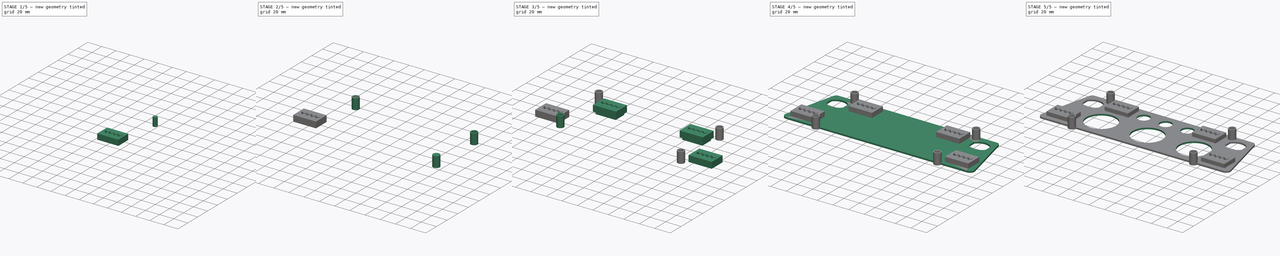
[diagram: build sequence overview — one tinted view per stage of 5, left to right]
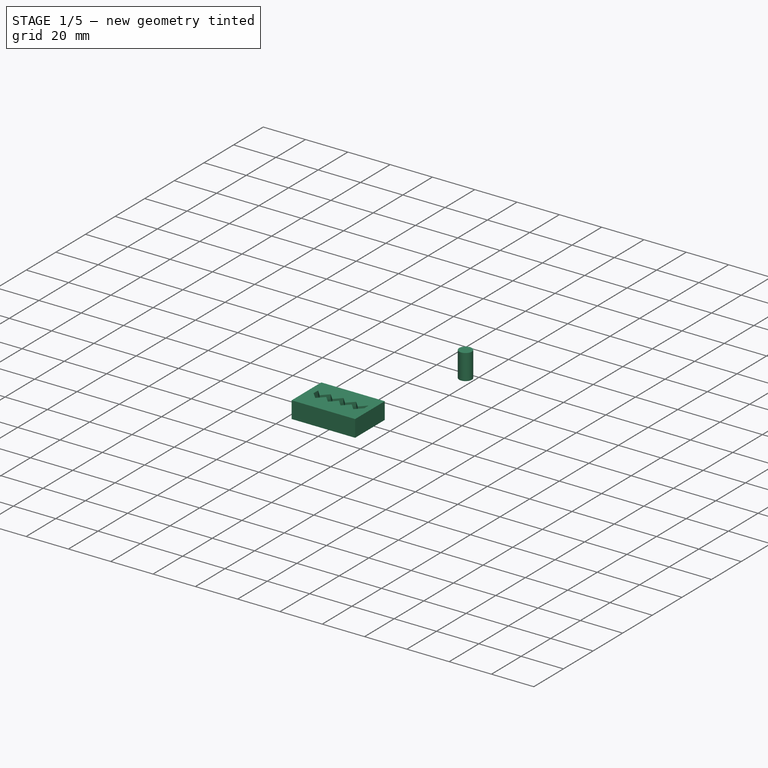
[diagram: stage 1 of 5 — iso view after this stage's code; geometry added in this stage tinted green]
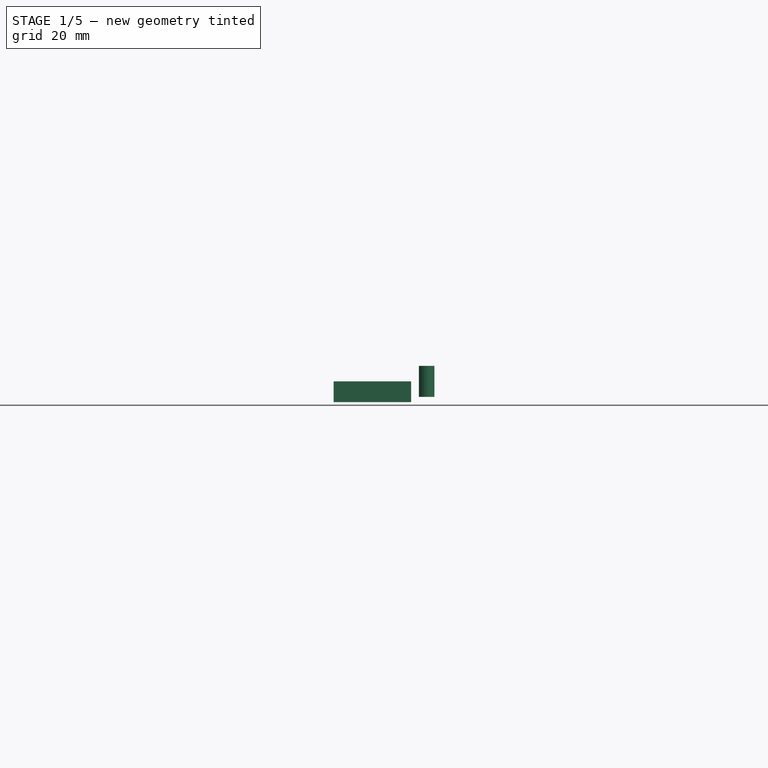
[diagram: stage 1 of 5 — front view after this stage's code; geometry added in this stage tinted green]
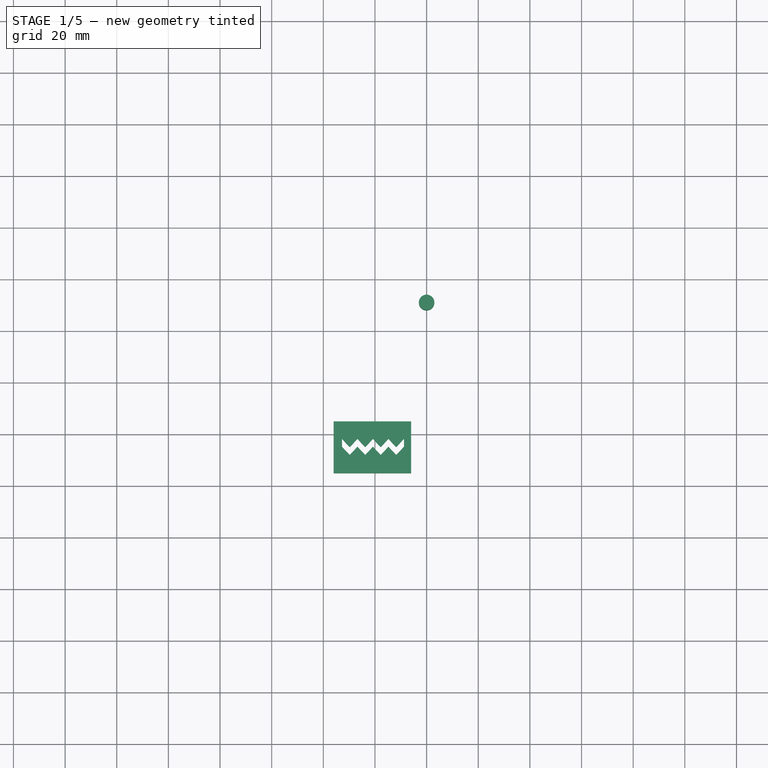
[diagram: stage 1 of 5 — top view after this stage's code; geometry added in this stage tinted green]
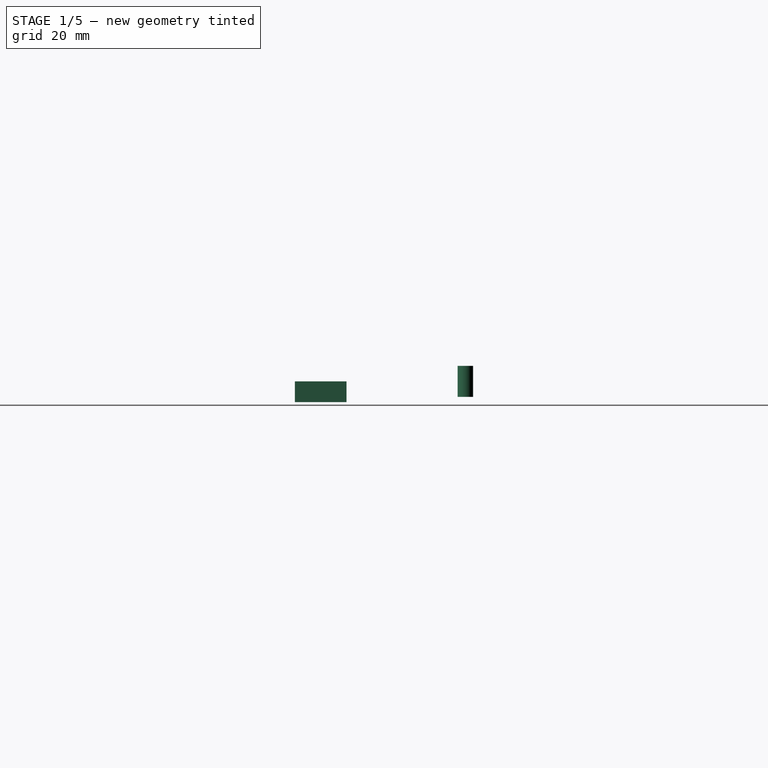
[diagram: stage 1 of 5 — right view after this stage's code; geometry added in this stage tinted green]
FCSTD DOCUMENT  (FreeCAD 0.16R5446 (Git))
Label: project_n
License: All rights reserved
LicenseURL: http://en.wikipedia.org/wiki/All_rights_reserved
objects: Part::Cylinder×8, Sketcher::SketchObject×7, Part::Box×7, Part::Cut×6, PartDesign::Pocket×5, Part::MultiFuse×5, Part::Feature×3, PartDesign::LinearPattern×2, PartDesign::Fillet×2, PartDesign::Pad×1
note: 52 computed .brp shape members not serialized (recipe doc carries the construction recipe); baked Part::Feature solids carry a one-line shape summary decoded from their .brp

FEATURE [Part::Cylinder] Cylinder007
  Angle = 360
  Height = 12
  Placement = pos=(0,71,2) rot=(0,0,1;0rad)
  Radius = 3
FEATURE [Part::Box] Box  label="Cube"
  Height = 8
  Length = 30
  Width = 20
FEATURE [Part::Box] Box001  label="Cube001"
  Height = 8
  Length = 26
  Placement = pos=(2,2,0) rot=(0,0,1;0rad)
  Width = 16
FEATURE [Part::Cut] Cut004
  Base = -> Box
  Tool = -> Box001
FEATURE [Part::Box] Box002  label="Cube002"
  Height = 2
  Length = 30
  Placement = pos=(0,0,6) rot=(0,0,1;0rad)
  Width = 20
FEATURE [Sketcher::SketchObject] Sketch004
  Placement = pos=(0,0,8) rot=(0,0,1;0rad)
  Support = -> Box002 [Face6]
  sketch-geometry (19):
    g0: LineSegment StartX=3.2265 StartY=13.2081 StartZ=0 EndX=6.2265 EndY=10 EndZ=0
    g1: LineSegment StartX=6.2265 StartY=10 StartZ=0 EndX=9.2265 EndY=13.2081 EndZ=0
    g2: LineSegment StartX=9.2265 StartY=13.2081 StartZ=0 EndX=12.2265 EndY=10 EndZ=0
    g3: LineSegment StartX=12.2265 StartY=10 StartZ=0 EndX=15.2265 EndY=13.2081 EndZ=0
    g4: LineSegment StartX=15.2265 StartY=13.2081 StartZ=0 EndX=18.2265 EndY=10 EndZ=0
    g5: LineSegment StartX=18.2265 StartY=10 StartZ=0 EndX=21.2265 EndY=13.2081 EndZ=0
    g6: LineSegment StartX=21.2265 StartY=13.2081 StartZ=0 EndX=24.2265 EndY=10 EndZ=0
    g7: LineSegment StartX=24.2265 StartY=10 StartZ=0 EndX=27.2265 EndY=13.2081 EndZ=0
    g8: LineSegment StartX=3.2265 StartY=13.2081 StartZ=0 EndX=3.2265 EndY=10.2081 EndZ=0
    g9: LineSegment StartX=3.2265 StartY=10.2081 StartZ=0 EndX=6.2265 EndY=7 EndZ=0
    g10: LineSegment StartX=6.2265 StartY=7 StartZ=0 EndX=9.2265 EndY=10.2081 EndZ=0
    g11: LineSegment StartX=9.2265 StartY=10.2081 StartZ=0 EndX=12.2265 EndY=7 EndZ=0
    g12: LineSegment StartX=12.2265 StartY=7 StartZ=0 EndX=15.2265 EndY=10.2081 EndZ=0
    g13: LineSegment StartX=15.2265 StartY=10.2081 StartZ=0 EndX=18.2265 EndY=7 EndZ=0
    g14: LineSegment StartX=18.2265 StartY=7 StartZ=0 EndX=21.2265 EndY=10.2081 EndZ=0
    g15: LineSegment StartX=21.2265 StartY=10.2081 StartZ=0 EndX=24.2265 EndY=7 EndZ=0
    g16: LineSegment StartX=24.2265 StartY=7 StartZ=0 EndX=27.2265 EndY=10.2081 EndZ=0
    g17: LineSegment StartX=27.2265 StartY=10.2081 StartZ=0 EndX=27.2265 EndY=13.2081 EndZ=0
    g18: LineSegment StartX=2.64581 StartY=15.2081 StartZ=0 EndX=29.6458 EndY=15.2081 EndZ=0
  constraints (50):
    c: Coincident(g0,g1)
    c: Coincident(g1,g2)
    c: Coincident(g2,g3)
    c: Coincident(g3,g4)
    c: Coincident(g4,g5)
    c: Coincident(g5,g6)
    c: Coincident(g6,g7)
    c: Coincident(g0,g8)
    c: Vertical(g8)
    c: Coincident(g8,g9)
    c: Coincident(g9,g10)
    c: Coincident(g10,g11)
    c: Coincident(g11,g12)
    c: Coincident(g12,g13)
    c: Coincident(g13,g14)
    c: Coincident(g14,g15)
    c: Coincident(g15,g16)
    c: Coincident(g16,g17)
    c: Coincident(g17,g7)
    c: DistanceY(g0,g9) = -3
    c: DistanceY(g8,g0) = 3
    c: DistanceY(g1,g10) = -3
    c: DistanceY(g11,g2) = 3
    c: DistanceY(g12,g3) = 3
    c: DistanceY(g4,g13) = -3
    c: DistanceY(g5,g14) = -3
    c: DistanceY(g15,g6) = 3
    c: DistanceY(g16,g7) = 3
    c: Horizontal(g18)
    c: DistanceY(g18,g0) = -2
    c: DistanceY(g1,g18) = 2
    c: DistanceY(g3,g18) = 2
    c: DistanceY(g5,g18) = 2
    c: DistanceY(g7,g18) = 2
    c: DistanceX(g0,g1) = 6
    c: DistanceX(g1,g3) = 6
    c: DistanceX(g3,g5) = 6
    c: DistanceX(g5,g7) = 6
    c: Vertical(g17)
    c: DistanceX(g9,g11) = 6
    c: DistanceX(g11,g13) = 6
    c: DistanceX(g13,g15) = 6
    c: DistanceX(g9,g8) = -3
    c: DistanceX(g8,g0) = 3
    c: DistanceX(g10,g0) = -3
    c: DistanceX(g10,g12) = 6
    c: DistanceX(g12,g14) = 6
    c: DistanceX(g2,g0) = -6
    c: DistanceX(g4,g2) = -6
    c: DistanceX(g4,g6) = 6
FEATURE [PartDesign::Pocket] Pocket002
  Length = 5
  Placement = pos=(0,0,6) rot=(0,0,1;0rad)
  Sketch = -> Sketch004
  Type = 0
FEATURE [Part::MultiFuse] Fusion001
  Placement = pos=(-36,5,0) rot=(0,0,1;0rad)
  Shapes = -> [Cut004,Pocket002]
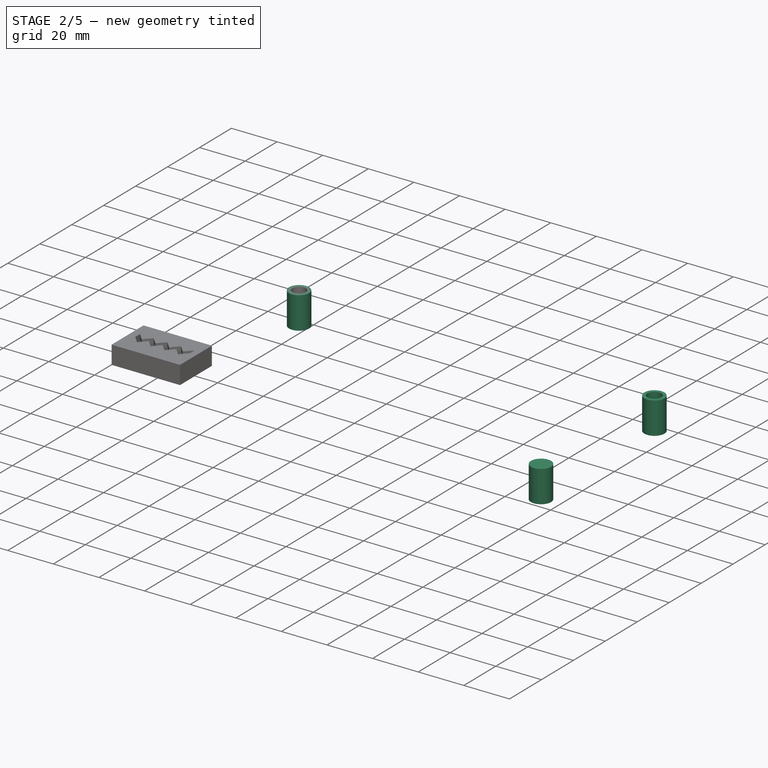
[diagram: stage 2 of 5 — iso view after this stage's code; geometry added in this stage tinted green]
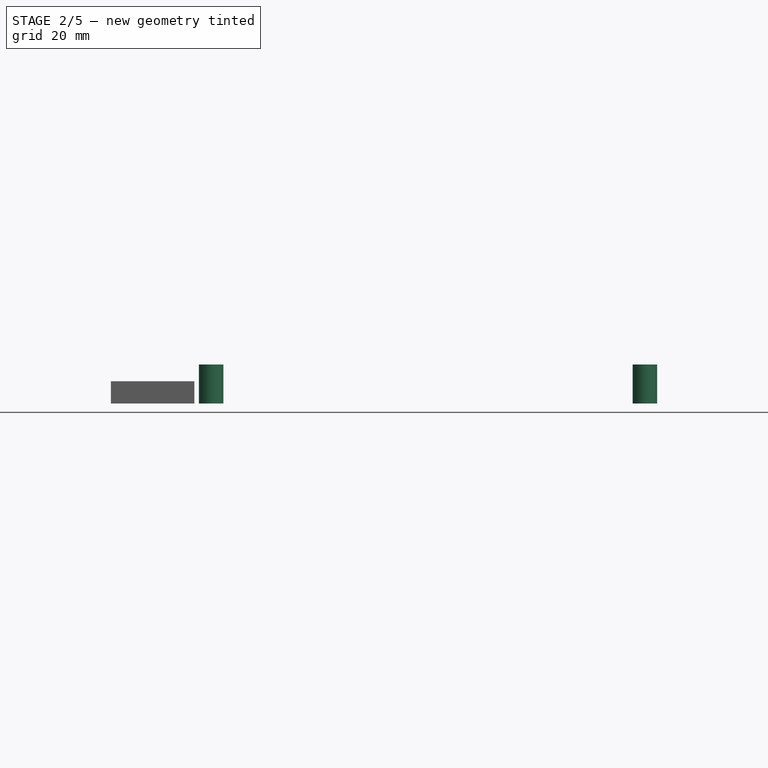
[diagram: stage 2 of 5 — front view after this stage's code; geometry added in this stage tinted green]
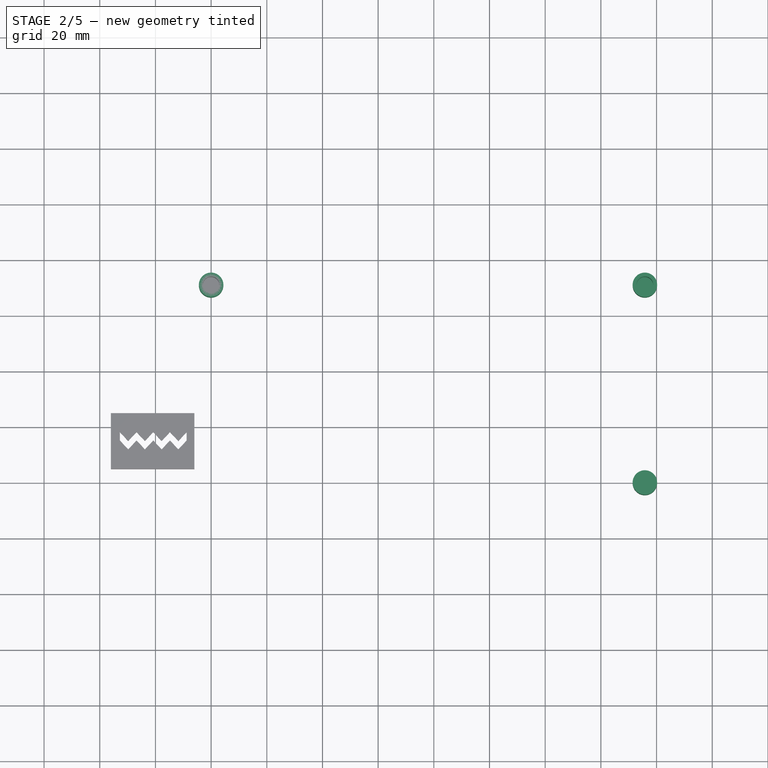
[diagram: stage 2 of 5 — top view after this stage's code; geometry added in this stage tinted green]
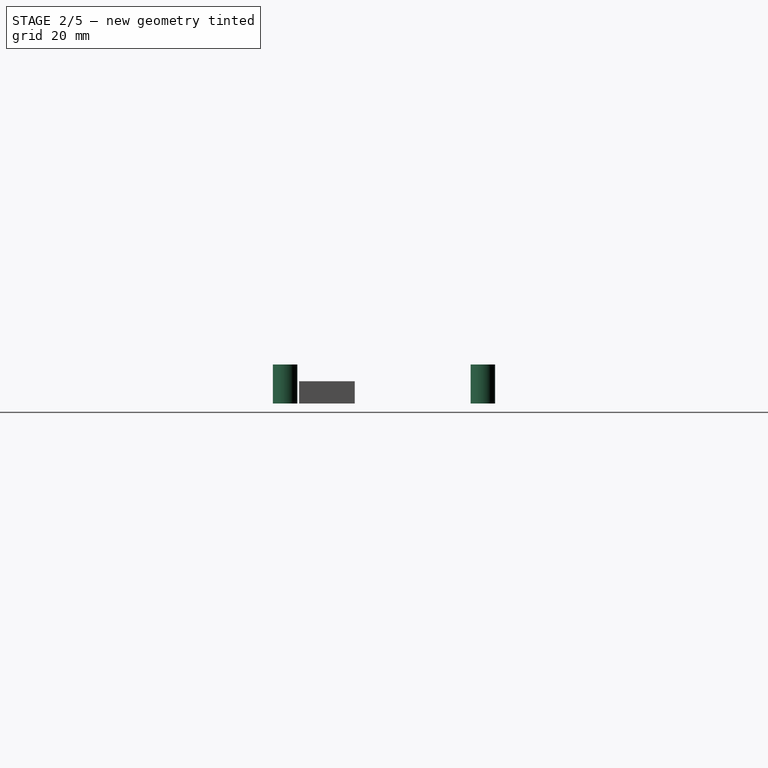
[diagram: stage 2 of 5 — right view after this stage's code; geometry added in this stage tinted green]
FEATURE [Part::Cylinder] Cylinder001
  Angle = 360
  Height = 14
  Placement = pos=(155.8,0,0) rot=(0,0,1;0rad)
  Radius = 4.4
FEATURE [Part::Cylinder] Cylinder002
  Angle = 360
  Height = 14
  Placement = pos=(155.8,71,0) rot=(0,0,1;0rad)
  Radius = 4.4
FEATURE [Part::Cylinder] Cylinder003
  Angle = 360
  Height = 14
  Placement = pos=(0,71,0) rot=(0,0,1;0rad)
  Radius = 4.4
FEATURE [Part::Cylinder] Cylinder005
  Angle = 360
  Height = 12
  Placement = pos=(155.8,0,2) rot=(0,0,1;0rad)
  Radius = 3
FEATURE [Part::Cylinder] Cylinder006
  Angle = 360
  Height = 12
  Placement = pos=(155.8,71,2) rot=(0,0,1;0rad)
  Radius = 3
FEATURE [Part::Cut] Cut002
  Base = -> Cylinder002
  Tool = -> Cylinder006
FEATURE [Part::Cut] Cut003
  Base = -> Cylinder003
  Tool = -> Cylinder007
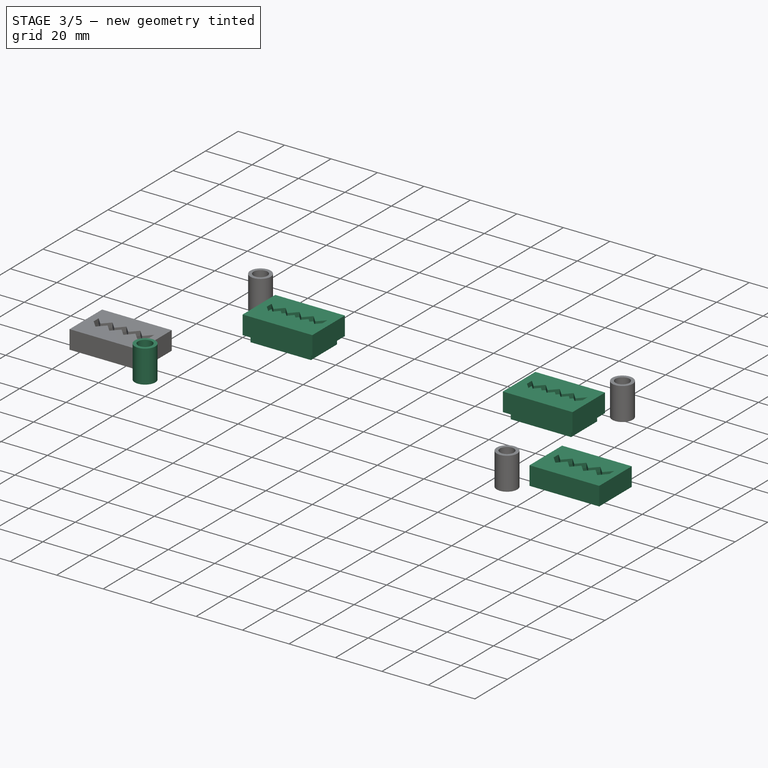
[diagram: stage 3 of 5 — iso view after this stage's code; geometry added in this stage tinted green]
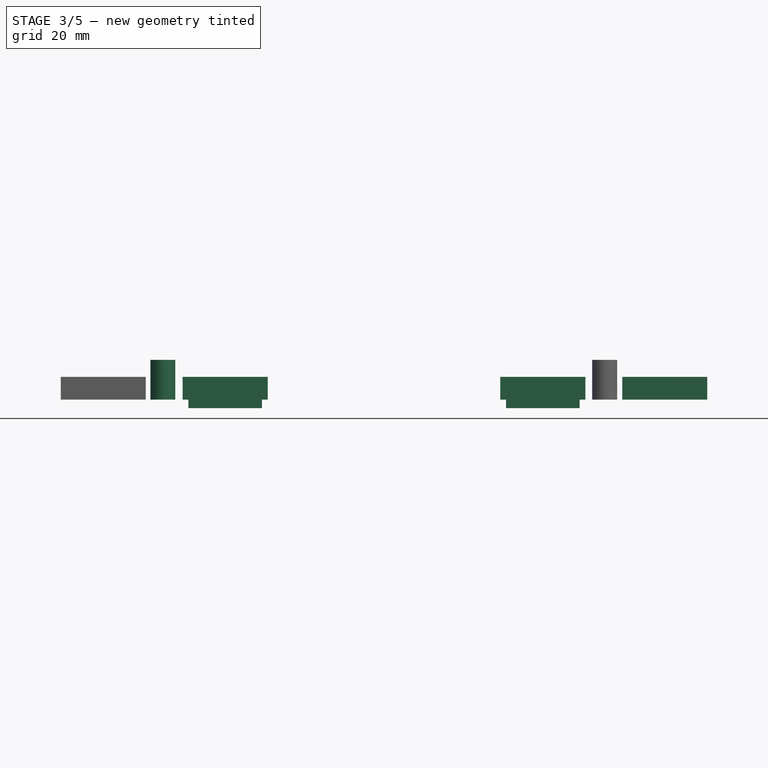
[diagram: stage 3 of 5 — front view after this stage's code; geometry added in this stage tinted green]
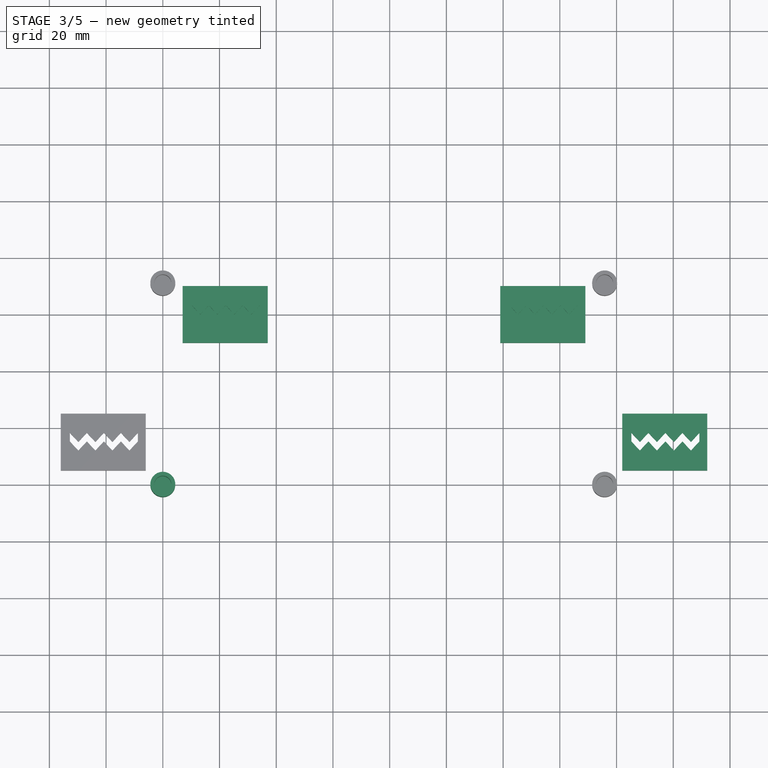
[diagram: stage 3 of 5 — top view after this stage's code; geometry added in this stage tinted green]
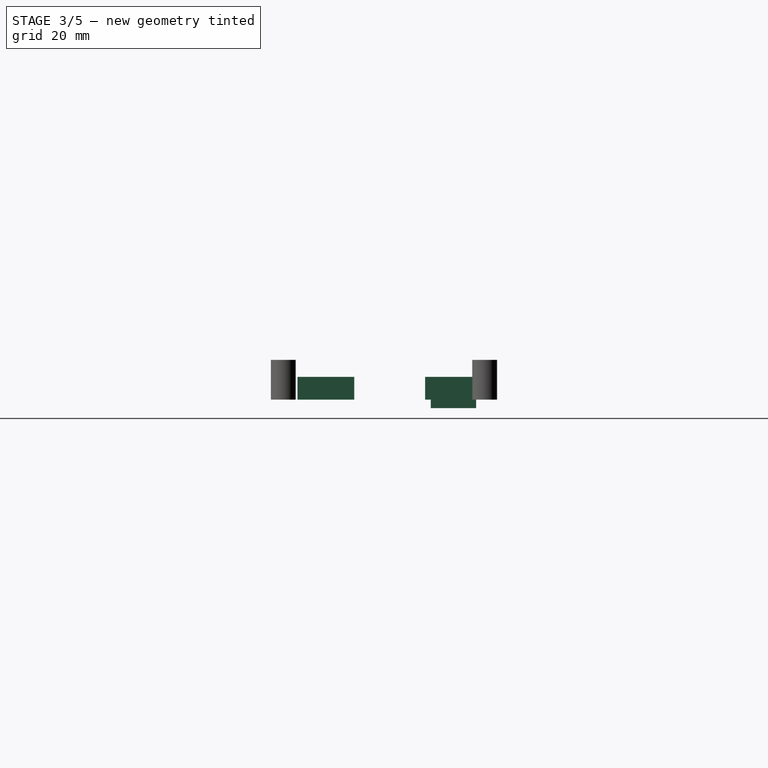
[diagram: stage 3 of 5 — right view after this stage's code; geometry added in this stage tinted green]
FEATURE [Part::Cylinder] Cylinder
  Angle = 360
  Height = 14
  Radius = 4.4
FEATURE [Part::Cylinder] Cylinder004
  Angle = 360
  Height = 12
  Placement = pos=(0,0,2) rot=(0,0,1;0rad)
  Radius = 3
FEATURE [Part::Cut] Cut
  Base = -> Cylinder
  Tool = -> Cylinder004
FEATURE [Part::Cut] Cut001
  Base = -> Cylinder001
  Tool = -> Cylinder005
FEATURE [Part::MultiFuse] Fusion
  Shapes = -> [Cut,Cut001,Cut002,Cut003]
FEATURE [Part::Box] Box005  label="Cube005"
  Height = 8
  Length = 26
  Placement = pos=(121,52,-3) rot=(0,0,1;0rad)
  Width = 16
FEATURE [Part::Box] Box006  label="Cube006"
  Height = 8
  Length = 26
  Placement = pos=(9,52,-3) rot=(0,0,1;0rad)
  Width = 16
FEATURE [Part::MultiFuse] Fusion001005
  Shapes = -> [Fusion,Fusion001,Fusion001001,Fusion001002,Fusion001003]
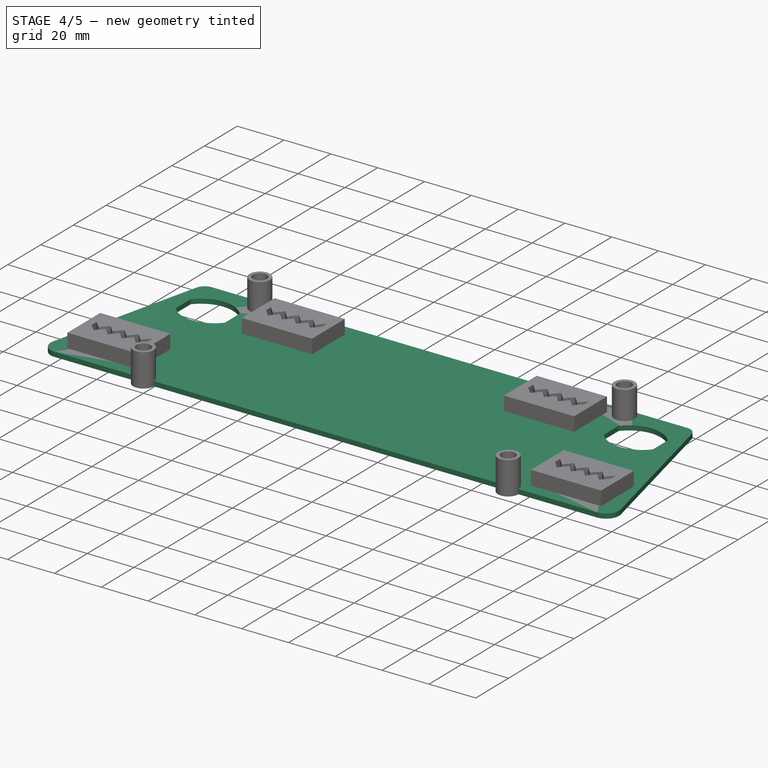
[diagram: stage 4 of 5 — iso view after this stage's code; geometry added in this stage tinted green]
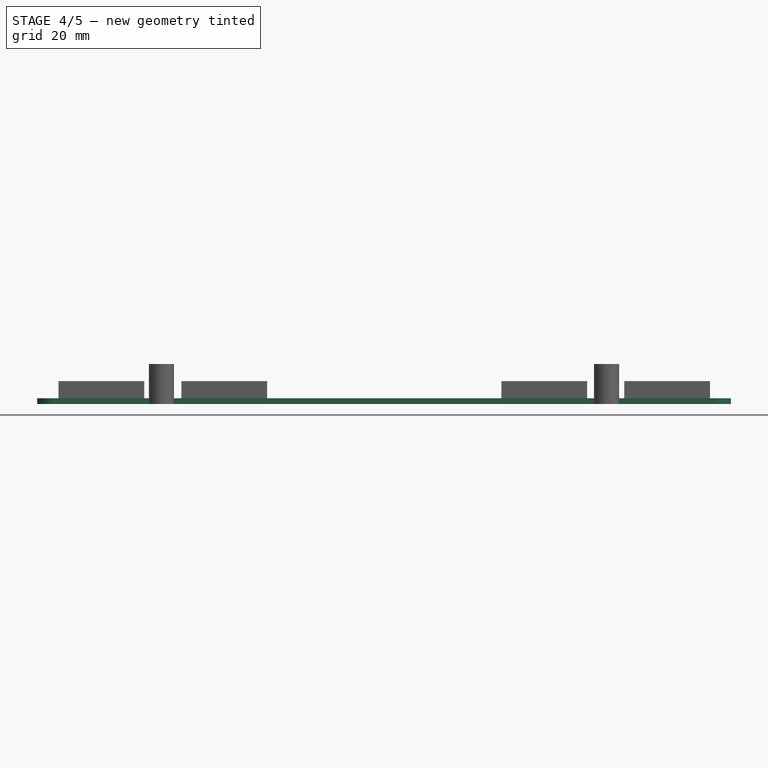
[diagram: stage 4 of 5 — front view after this stage's code; geometry added in this stage tinted green]
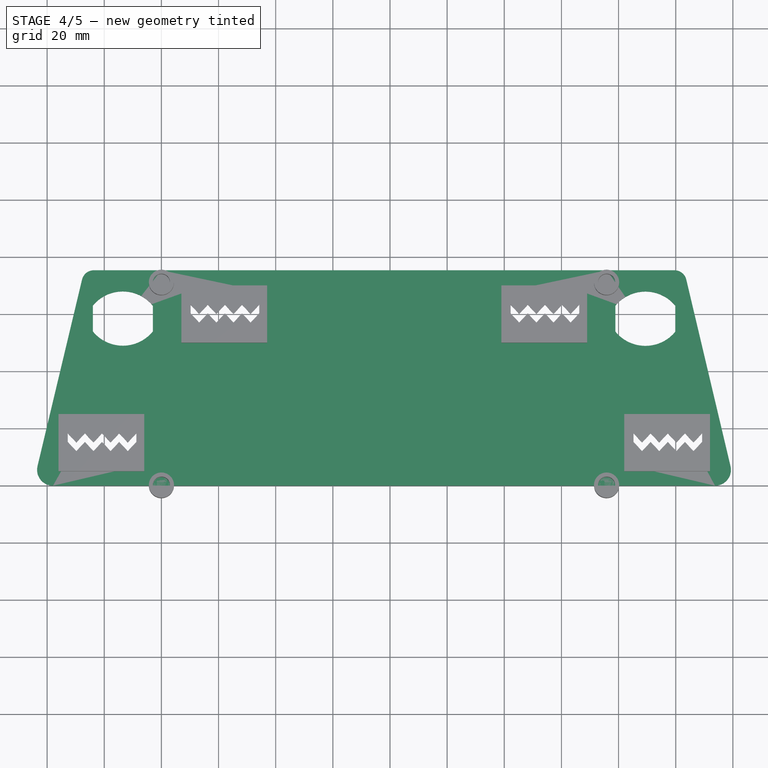
[diagram: stage 4 of 5 — top view after this stage's code; geometry added in this stage tinted green]
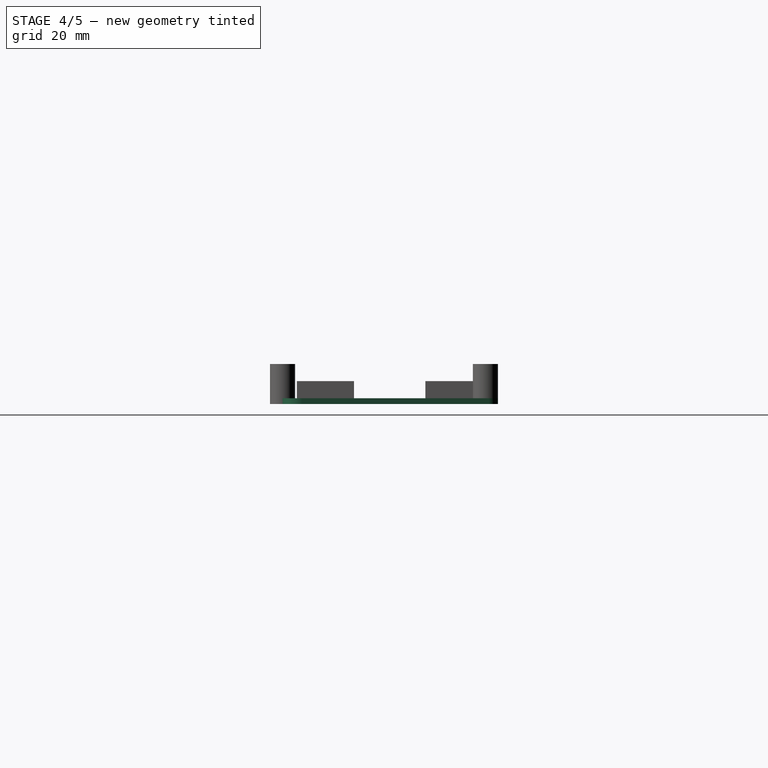
[diagram: stage 4 of 5 — right view after this stage's code; geometry added in this stage tinted green]
FEATURE [Sketcher::SketchObject] Sketch
  Placement = pos=(0,0,0) rot=(1,0,0;3.14159rad)
  sketch-geometry (12):
    g0: LineSegment StartX=0 StartY=0 StartZ=0 EndX=-37.9357 EndY=0 EndZ=0
    g1: LineSegment StartX=0 StartY=-75.4 StartZ=0 EndX=-23.6542 EndY=-75.4 EndZ=0
    g2: LineSegment StartX=-43.3597 StartY=-6.8712 StartZ=0 EndX=-27.7769 EndY=-72.1456 EndZ=0
    g3: LineSegment StartX=155.796 StartY=0 StartZ=0 EndX=193.736 EndY=0 EndZ=0
    g4: LineSegment StartX=199.168 StartY=-6.8694 StartZ=0 EndX=183.702 EndY=-72.1409 EndZ=0
    g5: LineSegment StartX=179.58 StartY=-75.4 StartZ=0 EndX=155.929 EndY=-75.4 EndZ=0
    g6: LineSegment StartX=0 StartY=-75.4 StartZ=0 EndX=155.929 EndY=-75.4 EndZ=0
    g7: LineSegment StartX=155.796 StartY=0 StartZ=0 EndX=0 EndY=0 EndZ=0
    g8: ArcOfCircle CenterX=-37.9357 CenterY=-5.57636 CenterZ=0 NormalX=0 NormalY=0 NormalZ=1 Radius=5.57636 StartAngle=1.5708 EndAngle=3.37593
    g9: ArcOfCircle CenterX=-23.6542 CenterY=-71.1614 CenterZ=0 NormalX=0 NormalY=0 NormalZ=1 Radius=4.23857 StartAngle=3.37593 EndAngle=4.71239
    g10: ArcOfCircle CenterX=179.58 CenterY=-71.1642 CenterZ=0 NormalX=0 NormalY=0 NormalZ=1 Radius=4.23577 StartAngle=4.71239 EndAngle=6.05052
    g11: ArcOfCircle CenterX=193.736 CenterY=-5.58227 CenterZ=0 NormalX=0 NormalY=0 NormalZ=1 Radius=5.58227 StartAngle=6.05052 EndAngle=7.85398
  constraints (20):
    c: Coincident(g-1,g0)
    c: Horizontal(g1)
    c: DistanceY(g-1,g1) = -75.4
    c: PointOnObject(g1,g-2)
    c: Horizontal(g3)
    c: Horizontal(g5)
    c: DistanceY(g5,g3) = 75.4
    c: Coincident(g6,g1)
    c: Coincident(g6,g5)
    c: Horizontal(g6)
    c: Coincident(g7,g3)
    c: Coincident(g7,g-1)
    c: Tangent(g0,g8) = -1.5708
    c: Tangent(g2,g8) = -1.5708
    c: Tangent(g1,g9) = 1.5708
    c: Tangent(g2,g9) = -1.5708
    c: Tangent(g4,g10) = 1.5708
    c: Tangent(g5,g10) = 1.5708
    c: Tangent(g3,g11) = 1.5708
    c: Tangent(g4,g11) = 1.5708
FEATURE [PartDesign::Pad] Pad
  Length = 2
  Length2 = 100
  Placement = pos=(0,0,0) rot=(1,0,0;3.14159rad)
  Reversed = true
  Sketch = -> Sketch
  Type = 0
FEATURE [Sketcher::SketchObject] Sketch001
  Placement = pos=(0,0,0) rot=(1,0,0;3.14159rad)
  Support = -> Pad [Face13]
FEATURE [Sketcher::SketchObject] Sketch002
  Placement = pos=(0,0,0) rot=(1,0,0;3.14159rad)
  Support = -> Pad [Face13]
  sketch-geometry (4):
    g0: ArcOfCircle CenterX=-13.5019 CenterY=-62.5019 CenterZ=0 NormalX=0 NormalY=0 NormalZ=1 Radius=13.5061 StartAngle=0.680901 EndAngle=2.46072
    g1: ArcOfCircle CenterX=-13.5196 CenterY=-54.4175 CenterZ=0 NormalX=0 NormalY=0 NormalZ=1 Radius=13.5666 StartAngle=3.83001 EndAngle=5.59886
    g2: LineSegment StartX=-23.9965 StartY=-54.0002 StartZ=0 EndX=-23.9965 EndY=-63.0367 EndZ=0
    g3: LineSegment StartX=-3.00764 StartY=-53.9999 StartZ=0 EndX=-3.00764 EndY=-62.9937 EndZ=0
  constraints (6):
    c: Vertical(g2)
    c: Vertical(g3)
    c: Coincident(g0,g3)
    c: Coincident(g1,g3)
    c: Coincident(g0,g2)
    c: Coincident(g1,g2)
FEATURE [PartDesign::Pocket] Pocket
  Length = 5
  Placement = pos=(0,0,0) rot=(1,0,0;3.14159rad)
  Sketch = -> Sketch002
  Type = 0
FEATURE [Sketcher::SketchObject] Sketch003
  Placement = pos=(0,0,0) rot=(1,0,0;3.14159rad)
  Support = -> Pocket [Face4]
  sketch-geometry (4):
    g0: ArcOfCircle CenterX=169.393 CenterY=-62.4863 CenterZ=0 NormalX=0 NormalY=0 NormalZ=1 Radius=13.5417 StartAngle=0.683489 EndAngle=2.45813
    g1: ArcOfCircle CenterX=169.376 CenterY=-54.4038 CenterZ=0 NormalX=0 NormalY=0 NormalZ=1 Radius=13.5402 StartAngle=3.82699 EndAngle=5.6019
    g2: LineSegment StartX=158.893 StartY=-53.935 StartZ=0 EndX=158.893 EndY=-62.9746 EndZ=0
    g3: LineSegment StartX=179.893 StartY=-53.9347 StartZ=0 EndX=179.893 EndY=-62.9313 EndZ=0
  constraints (9):
    c: Vertical(g2)
    c: Vertical(g3)
    c: Coincident(g0,g3)
    c: Coincident(g1,g3)
    c: Coincident(g0,g2)
    c: Coincident(g1,g2)
    c: DistanceX(g0,g0) = -21
    c: DistanceX(g0,g1) = -10.5176
    c: DistanceX(g1,g0) = -10.4999
FEATURE [PartDesign::Pocket] Pocket001
  Length = 5
  Placement = pos=(0,0,0) rot=(1,0,0;3.14159rad)
  Sketch = -> Sketch003
  Type = 0
FEATURE [Part::Feature] Fusion001001  label="Fusion002"
  Placement = pos=(162,5,0) rot=(0,0,1;0rad)
  shape: bbox 30 x 20 x 8 mm, 34 faces (baked)
FEATURE [Part::Feature] Fusion001002  label="Fusion003"
  Placement = pos=(119,50,0) rot=(0,0,1;0rad)
  shape: bbox 30 x 20 x 8 mm, 34 faces (baked)
FEATURE [Part::Feature] Fusion001003  label="Fusion004"
  Placement = pos=(7,50,0) rot=(0,0,1;0rad)
  shape: bbox 30 x 20 x 8 mm, 34 faces (baked)
FEATURE [Part::Box] Box003  label="Cube003"
  Height = 8
  Length = 26
  Placement = pos=(-34,7,-3) rot=(0,0,1;0rad)
  Width = 16
FEATURE [Part::Box] Box004  label="Cube004"
  Height = 8
  Length = 26
  Placement = pos=(164,7,-3) rot=(0,0,1;0rad)
  Width = 16
FEATURE [Part::MultiFuse] Fusion001004
  Shapes = -> [Box003,Box004,Box005,Box006]
FEATURE [Part::Cut] Cut005
  Base = -> Pocket001
  Tool = -> Fusion001004
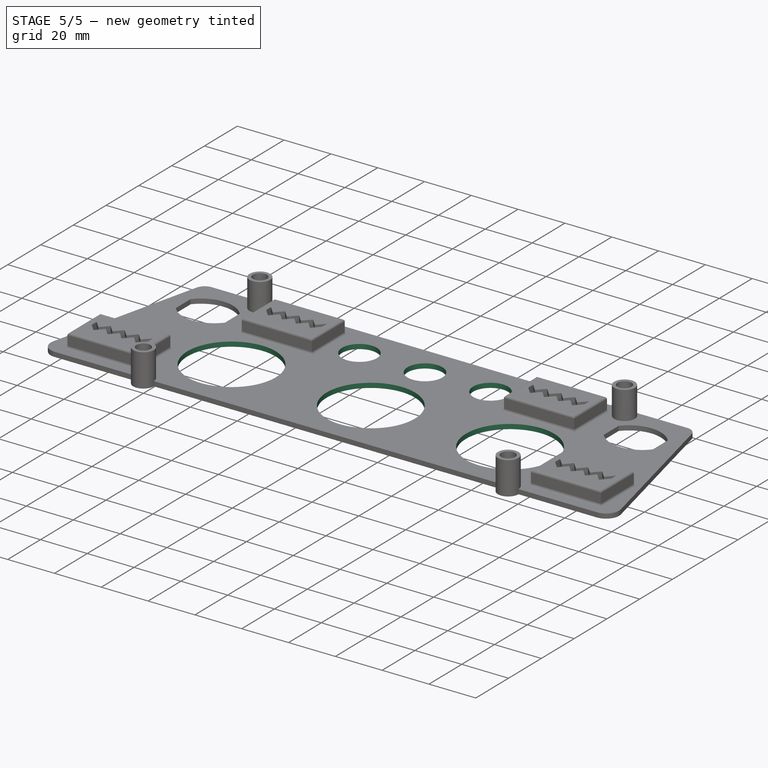
[diagram: stage 5 of 5 — iso view after this stage's code; geometry added in this stage tinted green]
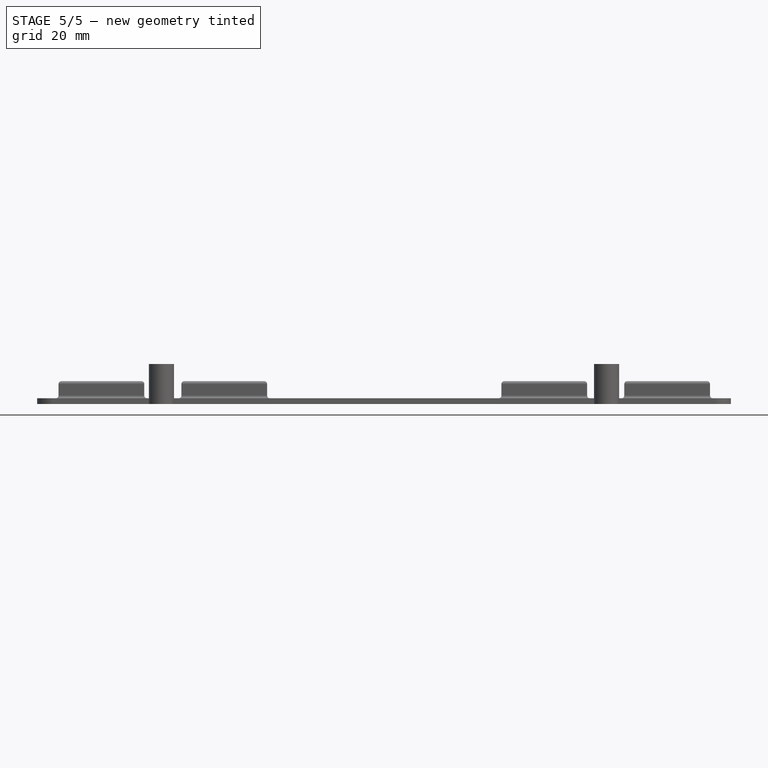
[diagram: stage 5 of 5 — front view after this stage's code; geometry added in this stage tinted green]
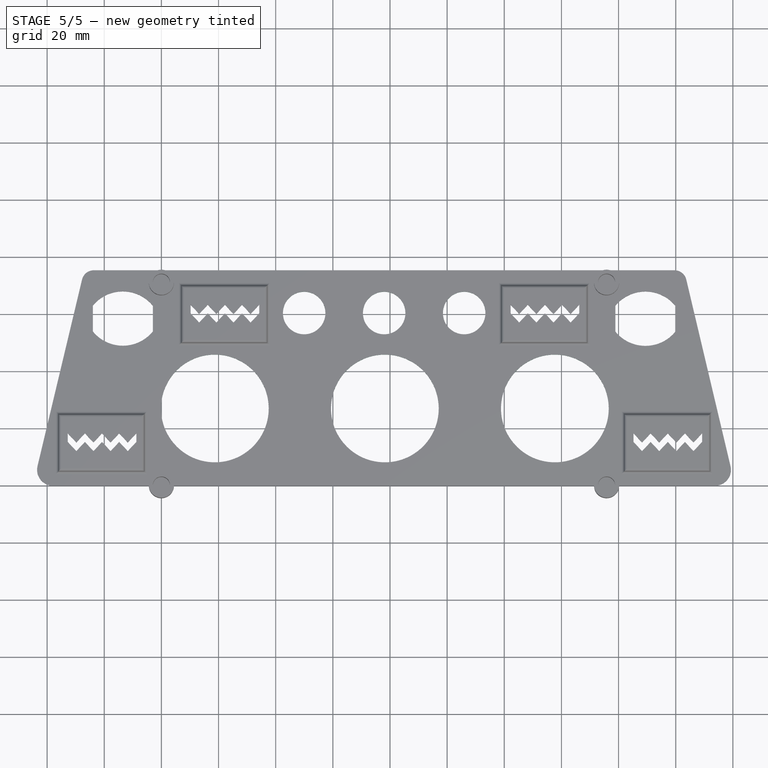
[diagram: stage 5 of 5 — top view after this stage's code; geometry added in this stage tinted green]
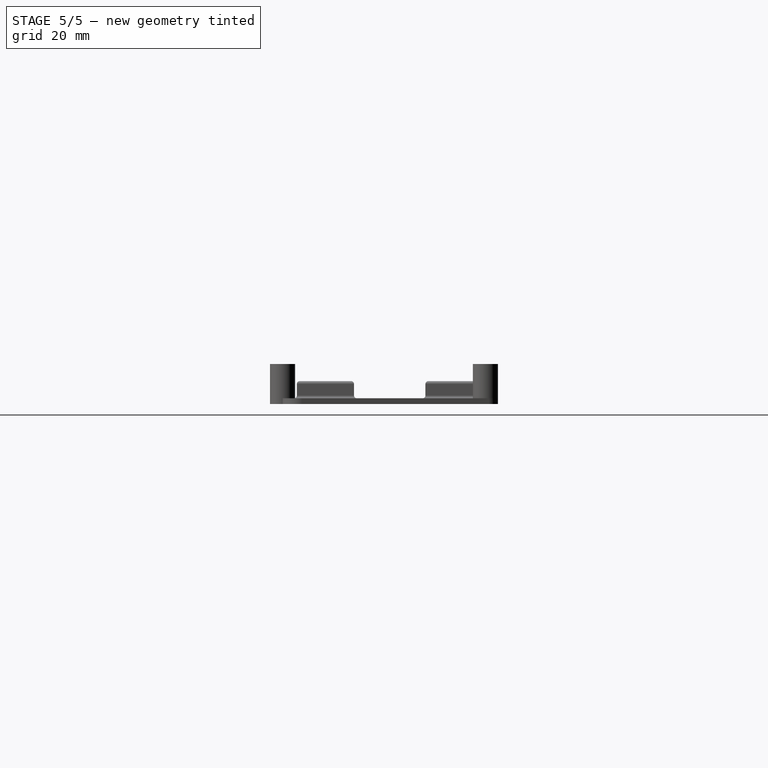
[diagram: stage 5 of 5 — right view after this stage's code; geometry added in this stage tinted green]
FEATURE [Sketcher::SketchObject] Sketch005
  Placement = pos=(0,0,2) rot=(0,0,1;0rad)
  Support = -> Cut005 [Face5]
  sketch-geometry (1):
    g0: Circle CenterX=18.7011 CenterY=27.0297 CenterZ=0 NormalX=0 NormalY=0 NormalZ=1 Radius=18.8529
FEATURE [PartDesign::Pocket] Pocket003
  Length = 5
  Sketch = -> Sketch005
  Type = 0
FEATURE [PartDesign::LinearPattern] LinearPattern
  Direction = -> Sketch005 [H_Axis]
  Length = 119
  Occurrences = 3
  Originals = -> [Pocket003]
FEATURE [Sketcher::SketchObject] Sketch006
  Placement = pos=(0,0,2) rot=(0,0,1;0rad)
  Support = -> LinearPattern [Face5]
  sketch-geometry (1):
    g0: Circle CenterX=49.9629 CenterY=60.4301 CenterZ=0 NormalX=0 NormalY=0 NormalZ=1 Radius=7.4352
FEATURE [PartDesign::Pocket] Pocket004
  Length = 5
  Sketch = -> Sketch006
  Type = 0
FEATURE [PartDesign::LinearPattern] LinearPattern001
  Direction = -> Sketch006 [H_Axis]
  Length = 56
  Occurrences = 3
  Originals = -> [Pocket004]
FEATURE [Part::MultiFuse] Fusion001006
  Shapes = -> [LinearPattern001,Fusion001005]
FEATURE [PartDesign::Fillet] Fillet
  Base = -> Fusion001006 [Edge72,Edge73,Edge230,Edge228,Edge238,Edge79,Edge80,Edge239,Edge77,Edge233,Edge235,Edge78,Edge74,Edge231,Edge225,Edge71]
  Radius = 1
FEATURE [PartDesign::Fillet] Fillet001
  Base = -> Fillet [Edge39,Edge193,Edge191,Edge38,Edge44,Edge199,Edge201,Edge45,Edge187,Edge36,Edge37,Edge189,Edge43,Edge197,Edge195,Edge42]
  Radius = 1
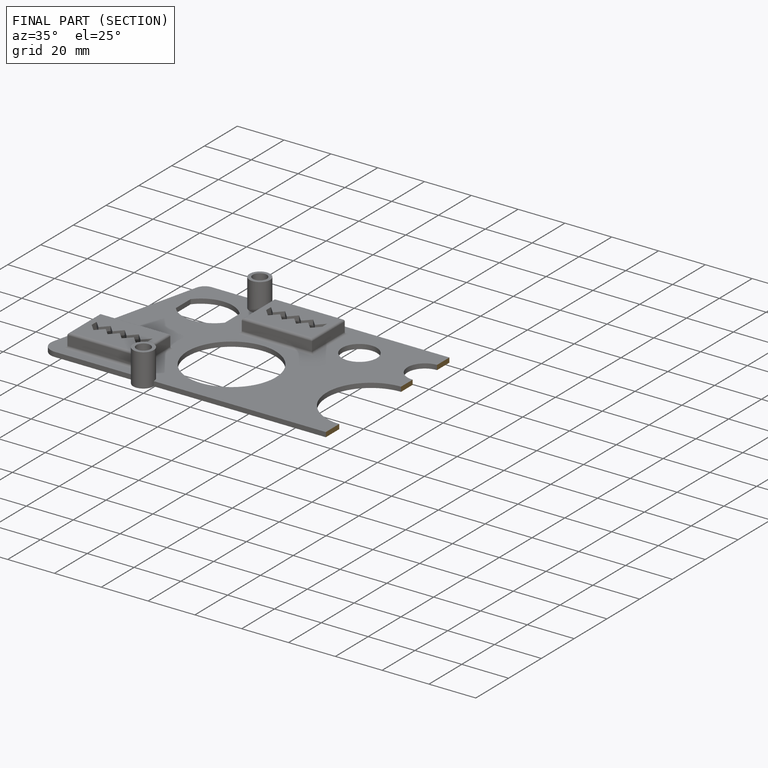
[diagram: finished part — half-section view (interior)]
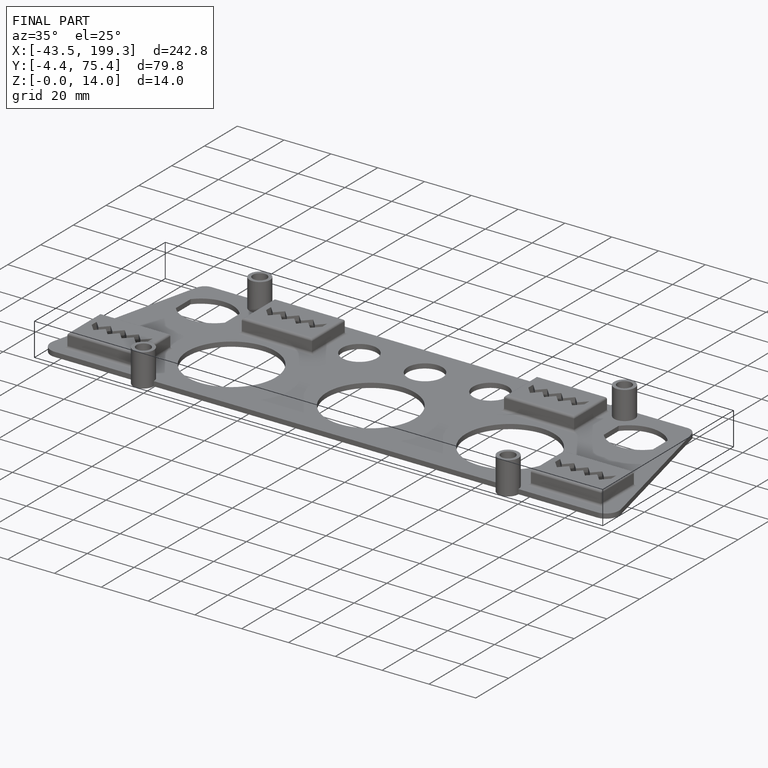
[diagram: finished part — iso view with bounding-box wireframe]
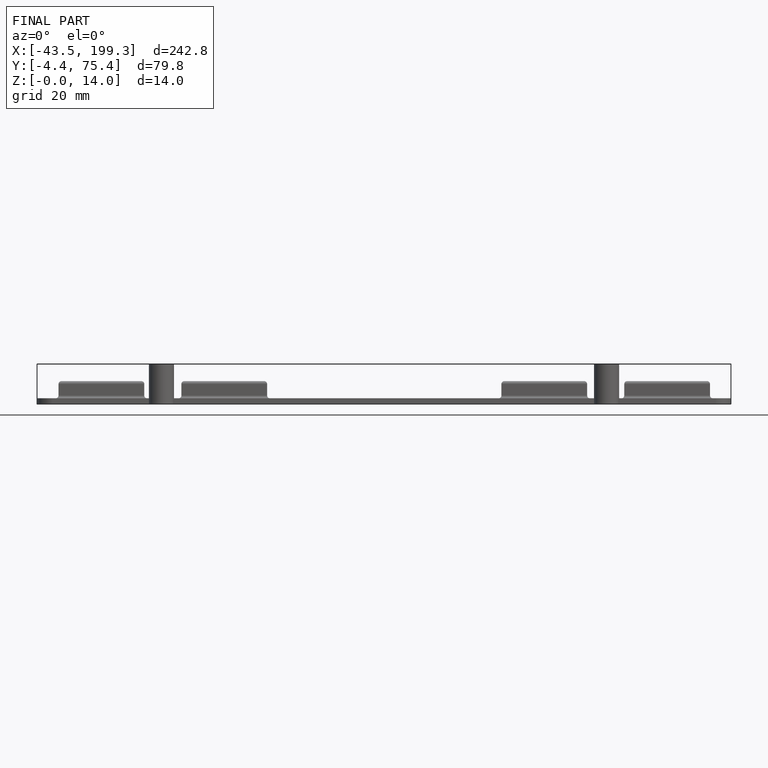
[diagram: finished part — front view with bounding-box wireframe]
